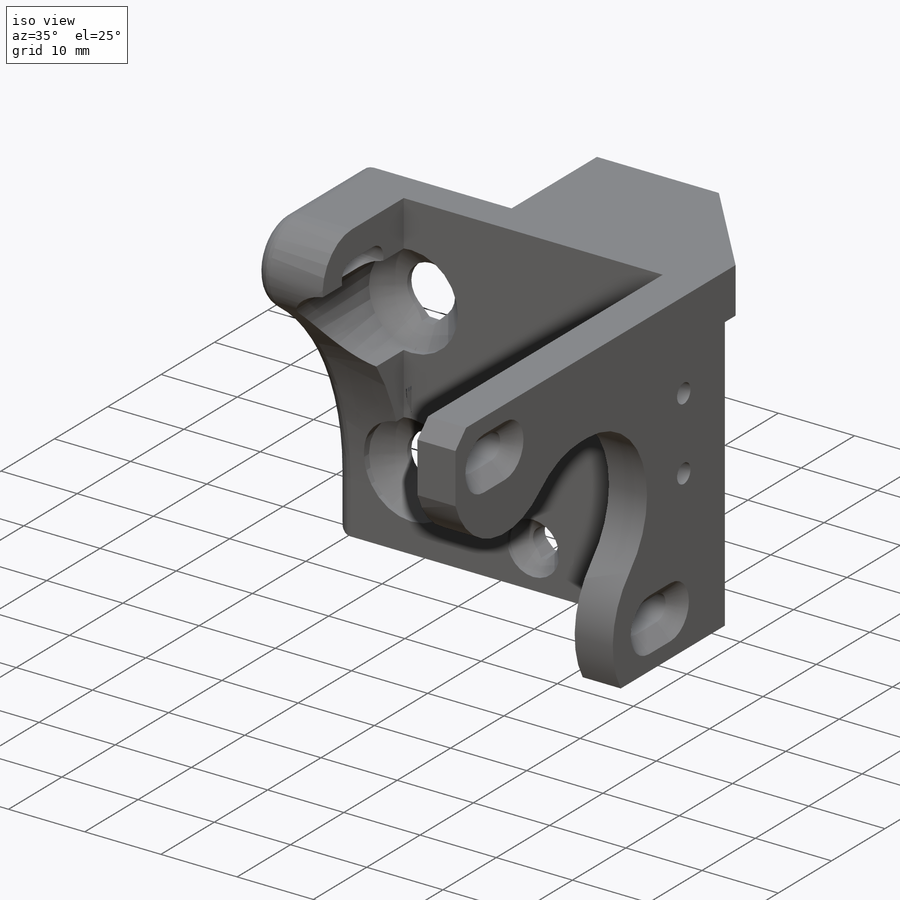
[diagram: iso view]
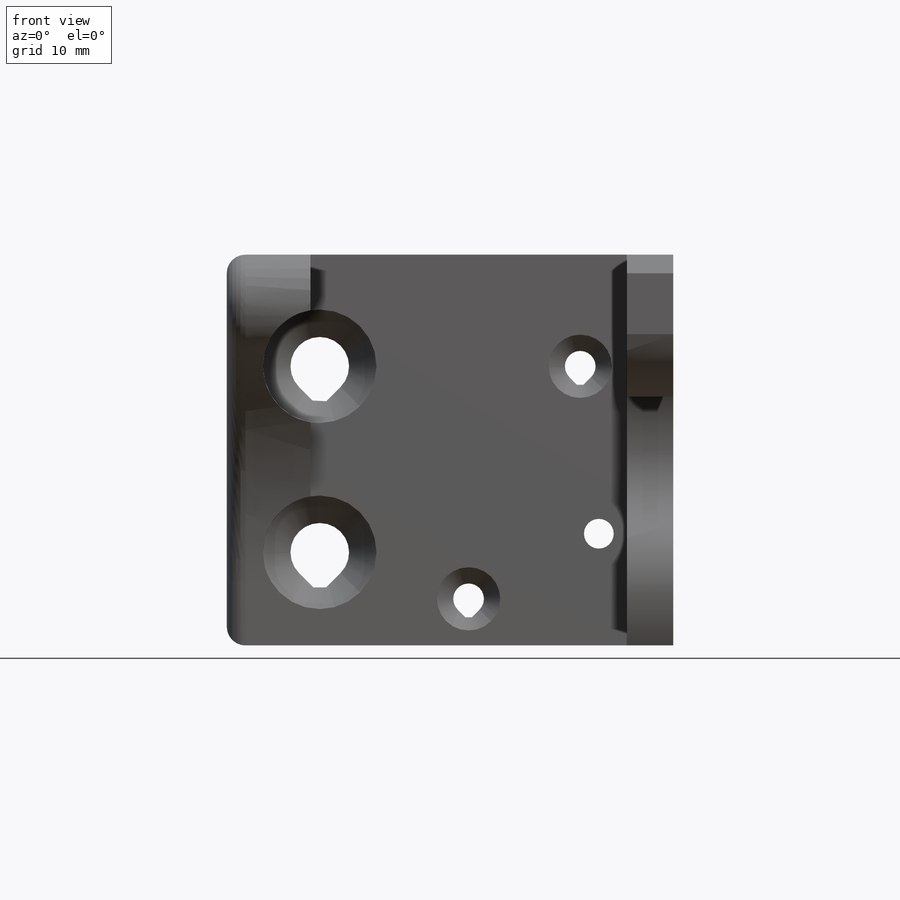
[diagram: front view]
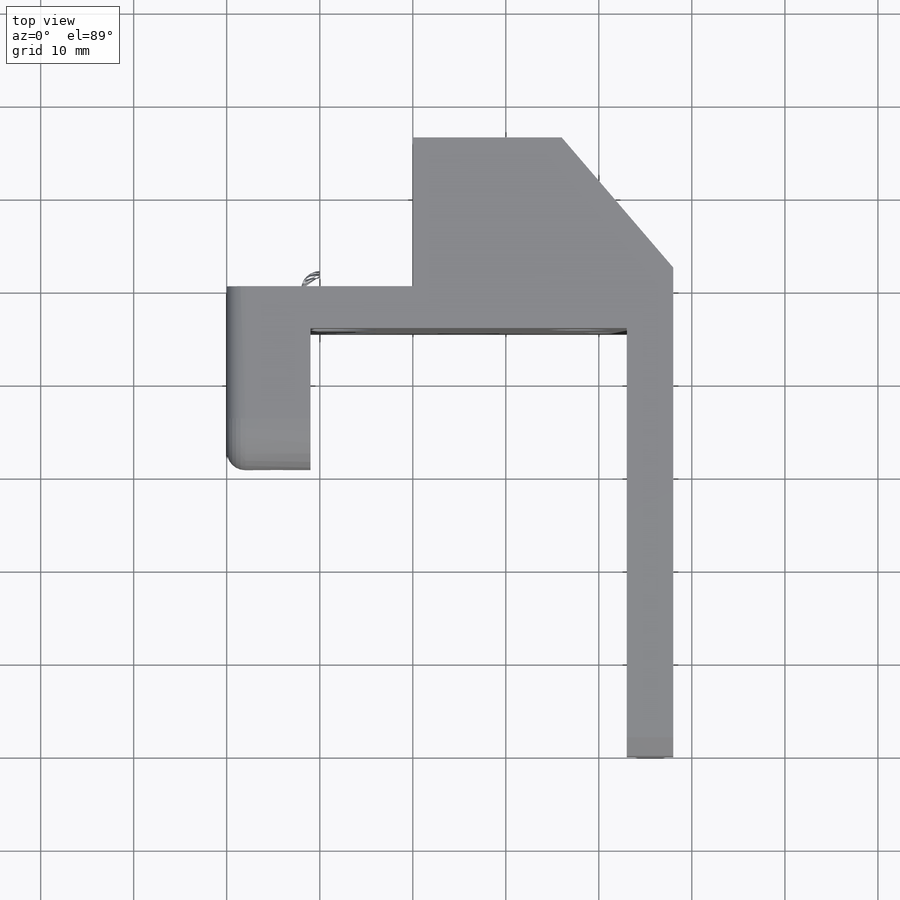
[diagram: top view]
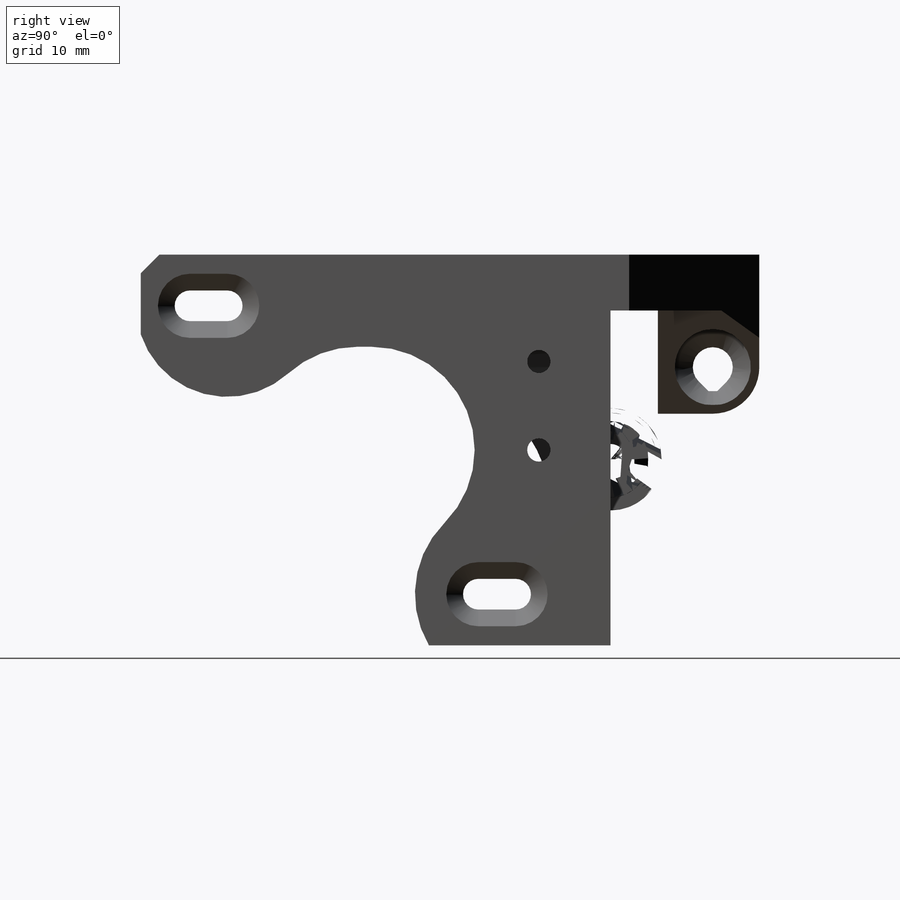
[diagram: right view]
SOLIDWORKS PART (.sldprt)
format: sldprt  version: not decoded by parser v0  size: 723,968 bytes
history: native  units: mm
features: sketch x17, cut_extrude x13, chamfer x7, extrude x4, material x1, fillet x1 (+13 scaffold rows collapsed)
feature tree (56):
  scaffold x13  (default folders/planes/origin — collapsed)
  material  "Custom Plastic"
  sketch  "Sketch1"  dims[c1.D2=6.3mm c1.D6=3.0mm c1.D1=20.0mm c1.D3=38.0mm c1.D4=12.0mm c1.D5=7.0mm c1.D7=18.0mm c1.D8=15.0mm c2.D4=42.0mm]
  extrude  "Boss-Extrude1"  Depth=4.5mm
  sketch  "Sketch4"  dims[D1=6.0mm D2=28.0mm]
  extrude  "Boss-Extrude2"  Depth=16mm
  sketch  "Sketch9"  dims[c1.D3=5.0mm c1.D1=~13.801096mm c2.D1=45.0deg c2.D2=12.0mm c3.D1=5.1mm c3.D2=5.1mm c3.D3=12.1mm]
  extrude  "Boss-Extrude4"  Depth=6mm
  chamfer  "Chamfer8"  Distance=13.5mm Angle=40deg
  sketch  "Sketch10"  dims[D1=4.3mm]
  cut_extrude  "Cut-Extrude6"  [1 undecoded]
  sketch  "Sketch11"  dims[D1=8.2mm]
  cut_extrude  "Cut-Extrude7"  Depth=7.5mm
  chamfer  "Chamfer9"  Distance=2mm Angle=45deg
  sketch  "Sketch12"  dims[D1=5.0mm D2=34.0mm]
  extrude  "Boss-Extrude5"  Depth=46mm
  sketch  "Sketch13"  dims[c1.D3=22.2mm c1.D4=3.2mm c1.D9=3.3mm c1.D10=22.2mm c2.D4=3.2mm c2.D1=31.0mm c2.D2=21.0mm c2.D5=21.2mm c2.D6=21.2mm c2.D7=21.0mm c2.D8=31.0mm c2.D11=5.5mm c3.D2=21.2mm c3.D3=4.0mm c3.D4=4.0mm c3.D5=1.0mm]
  cut_extrude  "Cut-Extrude8"  [1 undecoded]
  sketch  "Sketch14"  dims[c1.D1=62.0mm c1.D2=3.2mm c1.D3=3.2mm c2.D2=15.5mm c2.D3=15.5mm c3.D2=31.0mm c3.D1=4.0mm]
  cut_extrude  "Cut-Extrude9"  [1 undecoded]
  chamfer  "Chamfer11"  Distance=12mm
  sketch  "Sketch16"  dims[D1=3.2mm D2=8.0mm D3=30.0mm]
  cut_extrude  "Cut-Extrude11"  [1 undecoded]
  fillet  "Fillet1"  Radius=2mm
  chamfer  "Chamfer13"  Distance=2mm Angle=45deg
  chamfer  "Chamfer14"  Distance=1.8mm Angle=45deg
  sketch  "Sketch18"  dims[D1=12.2mm]
  cut_extrude  "Cut-Extrude13"  Depth=0.7mm
  chamfer  "Chamfer15"  Distance=3mm Angle=45deg
  sketch  "Sketch20"  dims[D1=0.62mm D2=0.62mm]
  cut_extrude  "Cut-Extrude14"  [1 undecoded]
  sketch  "Sketch24"  dims[c1.D1=2.5mm c1.D3=2.5mm c1.D2=9.5mm c2.D3=7.7mm]
  cut_extrude  "Cut-Extrude18"  [1 undecoded]
  sketch  "Sketch25"  dims[c1.D1=3.3mm c1.D4=3.3mm c1.D2=24.0mm c1.D3=15.0mm c2.D4=14.0mm c2.D2=10.0mm c2.D5=2.0mm]
  cut_extrude  "Cut-Extrude19"  [1 undecoded]
  sketch  "Sketch26"  dims[D1=6.8mm]
  cut_extrude  "Cut-Extrude20"  Depth=0.5mm
  chamfer  "Chamfer16"  Distance=1.8mm Angle=45deg
  sketch  "Sketch27"  dims[D1=0.33mm D2=0.33mm]
  cut_extrude  "Cut-Extrude21"  [1 undecoded]
  sketch  "Sketch28"
  cut_extrude  "Cut-Extrude22"  [1 undecoded]
  sketch  "Sketch29"  dims[D1=0.42mm]
  cut_extrude  "Cut-Extrude23"  [1 undecoded]
decode coverage: 31 of 42 modeling features carry decoded parameters
note: ~ marks probable driven/reference dimensions
note: 10 parameter values undecoded
summary: no parameter record found for 10 features
note: suppression state not decoded; provenance and decode notes live in map.json
